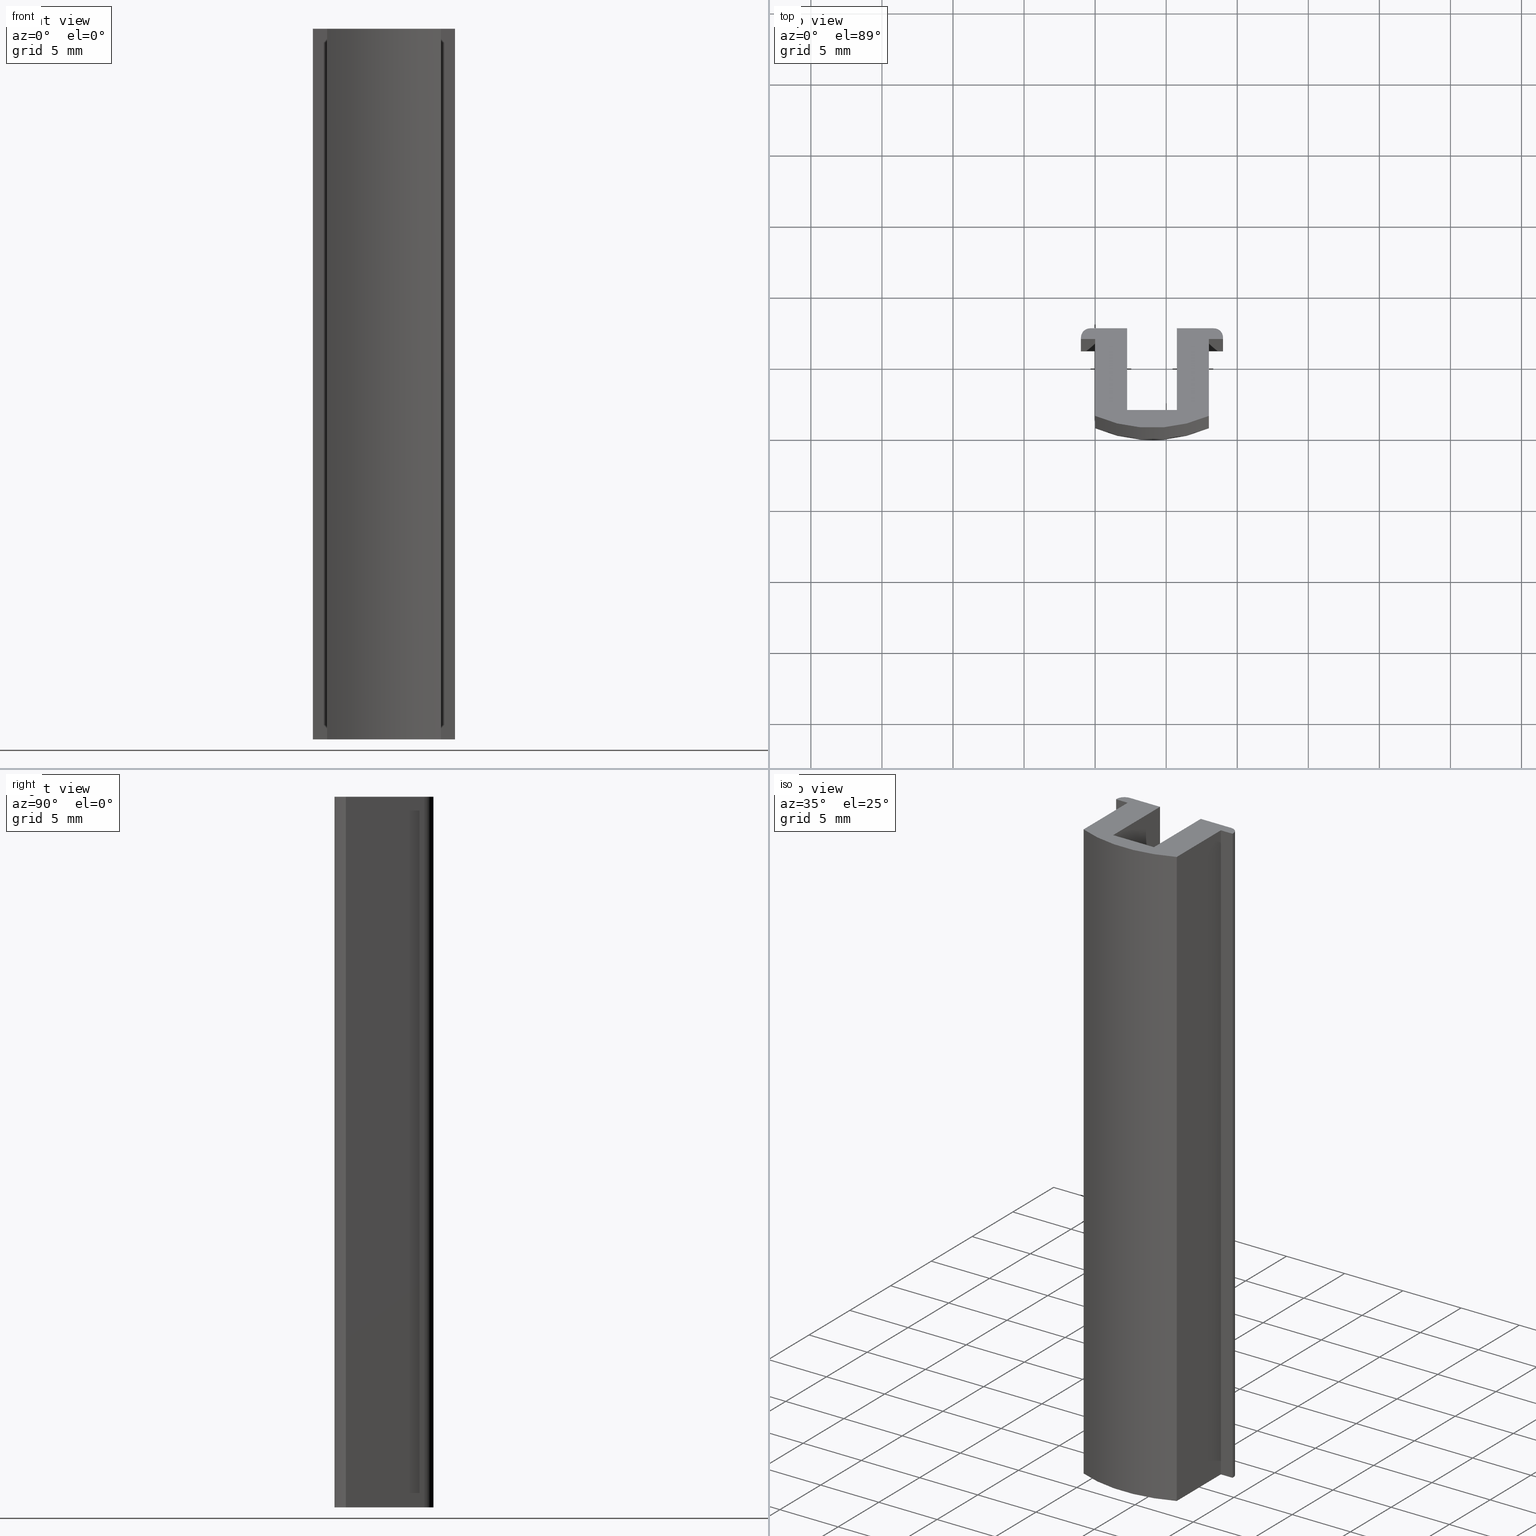
[diagram: canonical four-view strip — front | top / right | iso, engineering-drawing reading convention]
A machine part, canonical four-view strip (front | top / right | iso — engineering-drawing reading convention). The complete STEP part file that produces these views, byte-faithful:
ISO-10303-21;
HEADER;
FILE_DESCRIPTION (( 'STEP AP203' ),
    '1' );
FILE_NAME ('A39-33.STEP',
    '2018-03-28T16:40:56',
    ( 'User2' ),
    ( '' ),
    'SwSTEP 2.0',
    'SolidWorks 2007',
    '' );
FILE_SCHEMA (( 'CONFIG_CONTROL_DESIGN' ));
ENDSEC;

DATA;
#1 = PLANE ( 'NONE',  #492 ) ;
#2 = CARTESIAN_POINT ( 'NONE',  ( 5.750000000000000000, 7.000000000000000000, 50.00000000000000000 ) ) ;
#3 = DIRECTION ( 'NONE',  ( 1.000000000000000000, 0.0000000000000000000, -0.0000000000000000000 ) ) ;
#4 = DIRECTION ( 'NONE',  ( -0.0000000000000000000, 0.0000000000000000000, -1.000000000000000000 ) ) ;
#5 = PLANE ( 'NONE',  #503 ) ;
#6 = CARTESIAN_POINT ( 'NONE',  ( 9.000000000000001800, 6.250000000000000000, 50.00000000000000000 ) ) ;
#7 = DIRECTION ( 'NONE',  ( -1.000000000000000000, 9.251858538543070000E-015, 0.0000000000000000000 ) ) ;
#8 = DIRECTION ( 'NONE',  ( -9.251858538543070000E-015, -1.000000000000000000, 0.0000000000000000000 ) ) ;
#9 = PLANE ( 'NONE',  #514 ) ;
#10 = CARTESIAN_POINT ( 'NONE',  ( 0.0000000000000000000, 6.250000000000000000, 50.00000000000000000 ) ) ;
#11 = DIRECTION ( 'NONE',  ( 1.000000000000000000, 0.0000000000000000000, -0.0000000000000000000 ) ) ;
#12 = DIRECTION ( 'NONE',  ( -0.0000000000000000000, 0.0000000000000000000, -1.000000000000000000 ) ) ;
#13 =( LENGTH_UNIT ( ) NAMED_UNIT ( * ) SI_UNIT ( .MILLI., .METRE. ) );
#14 =( NAMED_UNIT ( * ) PLANE_ANGLE_UNIT ( ) SI_UNIT ( $, .RADIAN. ) );
#15 =( NAMED_UNIT ( * ) SI_UNIT ( $, .STERADIAN. ) SOLID_ANGLE_UNIT ( ) );
#16 = APPROVAL_STATUS ( 'not_yet_approved' ) ;
#17 = APPROVAL_ROLE ( '' ) ;
#18 = CARTESIAN_POINT ( 'NONE',  ( 0.0000000000000000000, 0.0000000000000000000, 0.0000000000000000000 ) ) ;
#19 = DIRECTION ( 'NONE',  ( 0.0000000000000000000, 0.0000000000000000000, 1.000000000000000000 ) ) ;
#20 = VERTEX_POINT ( 'NONE', #398 ) ;
#21 = EDGE_CURVE ( 'NONE', #392, #334, #532, .T. ) ;
#22 = EDGE_CURVE ( 'NONE', #394, #390, #531, .T. ) ;
#23 = EDGE_CURVE ( 'NONE', #546, #336, #534, .T. ) ;
#24 = EDGE_CURVE ( 'NONE', #395, #394, #282, .T. ) ;
#25 = EDGE_CURVE ( 'NONE', #336, #340, #281, .T. ) ;
#26 = EDGE_CURVE ( 'NONE', #548, #341, #284, .T. ) ;
#27 = EDGE_CURVE ( 'NONE', #547, #548, #286, .T. ) ;
#28 = EDGE_CURVE ( 'NONE', #334, #342, #288, .T. ) ;
#29 = EDGE_CURVE ( 'NONE', #20, #543, #208, .T. ) ;
#30 = EDGE_CURVE ( 'NONE', #395, #389, #210, .T. ) ;
#31 = EDGE_CURVE ( 'NONE', #548, #549, #212, .T. ) ;
#32 = EDGE_CURVE ( 'NONE', #20, #397, #214, .T. ) ;
#33 = EDGE_CURVE ( 'NONE', #388, #396, #216, .T. ) ;
#34 = EDGE_CURVE ( 'NONE', #341, #335, #218, .T. ) ;
#35 = EDGE_CURVE ( 'NONE', #543, #387, #220, .T. ) ;
#36 = EDGE_CURVE ( 'NONE', #387, #388, #222, .T. ) ;
#37 = EDGE_CURVE ( 'NONE', #547, #340, #224, .T. ) ;
#38 = EDGE_CURVE ( 'NONE', #392, #545, #226, .T. ) ;
#39 = EDGE_CURVE ( 'NONE', #335, #20, #473, .T. ) ;
#40 = EDGE_CURVE ( 'NONE', #396, #395, #472, .T. ) ;
#41 = EDGE_CURVE ( 'NONE', #388, #389, #475, .T. ) ;
#42 = EDGE_CURVE ( 'NONE', #393, #544, #477, .T. ) ;
#43 = EDGE_CURVE ( 'NONE', #339, #336, #479, .T. ) ;
#44 = EDGE_CURVE ( 'NONE', #544, #334, #463, .T. ) ;
#45 = EDGE_CURVE ( 'NONE', #545, #342, #466, .T. ) ;
#46 = EDGE_CURVE ( 'NONE', #394, #393, #465, .T. ) ;
#47 = EDGE_CURVE ( 'NONE', #387, #397, #468, .T. ) ;
#48 = EDGE_CURVE ( 'NONE', #337, #339, #470, .T. ) ;
#49 = EDGE_CURVE ( 'NONE', #546, #547, #141, .T. ) ;
#50 = EDGE_CURVE ( 'NONE', #390, #391, #143, .T. ) ;
#51 = EDGE_CURVE ( 'NONE', #337, #546, #145, .T. ) ;
#52 = PLANE ( 'NONE',  #482 ) ;
#53 = CARTESIAN_POINT ( 'NONE',  ( -0.9999999999999922300, 1.250000000000000000, 50.00000000000000000 ) ) ;
#54 = DIRECTION ( 'NONE',  ( -0.0000000000000000000, 0.0000000000000000000, -1.000000000000000000 ) ) ;
#55 = DIRECTION ( 'NONE',  ( -1.000000000000000000, 0.0000000000000000000, 0.0000000000000000000 ) ) ;
#56 = PLANE ( 'NONE',  #509 ) ;
#57 = CARTESIAN_POINT ( 'NONE',  ( 8.000000000000000000, 6.250000000000000000, 50.00000000000000000 ) ) ;
#58 = DIRECTION ( 'NONE',  ( 0.0000000000000000000, 1.000000000000000000, 0.0000000000000000000 ) ) ;
#59 = DIRECTION ( 'NONE',  ( 0.0000000000000000000, -0.0000000000000000000, 1.000000000000000000 ) ) ;
#60 = PLANE ( 'NONE',  #488 ) ;
#61 = CARTESIAN_POINT ( 'NONE',  ( -1.000000000000000900, 6.999999999999992000, 50.00000000000000000 ) ) ;
#62 = DIRECTION ( 'NONE',  ( 1.000000000000000000, 1.156482317317883800E-015, -0.0000000000000000000 ) ) ;
#63 = DIRECTION ( 'NONE',  ( -1.156482317317883800E-015, 1.000000000000000000, 0.0000000000000000000 ) ) ;
#64 = CARTESIAN_POINT ( 'NONE',  ( 8.350000000000010300, 6.350000000000002300, 0.0000000000000000000 ) ) ;
#65 = DIRECTION ( 'NONE',  ( -0.0000000000000000000, -0.0000000000000000000, 1.000000000000000000 ) ) ;
#66 = DIRECTION ( 'NONE',  ( 1.000000000000000000, 0.0000000000000000000, 0.0000000000000000000 ) ) ;
#67 = PLANE ( 'NONE',  #493 ) ;
#68 = CARTESIAN_POINT ( 'NONE',  ( -0.9999999999999922300, 1.250000000000000000, 0.0000000000000000000 ) ) ;
#69 = DIRECTION ( 'NONE',  ( -0.0000000000000000000, 0.0000000000000000000, -1.000000000000000000 ) ) ;
#70 = DIRECTION ( 'NONE',  ( -1.000000000000000000, 0.0000000000000000000, 0.0000000000000000000 ) ) ;
#71 = VECTOR ( 'NONE', #164, 1000.000000000000000 ) ;
#72 = LINE ( 'NONE', #168, #74 ) ;
#73 = CIRCLE ( 'NONE', #486, 10.00000000000000000 ) ;
#74 = VECTOR ( 'NONE', #169, 1000.000000000000000 ) ;
#75 = FACE_OUTER_BOUND ( 'NONE', #206, .T. ) ;
#76 = FACE_OUTER_BOUND ( 'NONE', #520, .T. ) ;
#77 = FACE_OUTER_BOUND ( 'NONE', #516, .T. ) ;
#78 = FACE_OUTER_BOUND ( 'NONE', #377, .T. ) ;
#79 = CYLINDRICAL_SURFACE ( 'NONE', #504, 0.6499999999999891400 ) ;
#80 = FACE_OUTER_BOUND ( 'NONE', #204, .T. ) ;
#81 = FACE_OUTER_BOUND ( 'NONE', #383, .T. ) ;
#82 = FACE_OUTER_BOUND ( 'NONE', #381, .T. ) ;
#83 = FACE_OUTER_BOUND ( 'NONE', #517, .T. ) ;
#84 = DIRECTION ( 'NONE',  ( 1.000000000000000000, 0.0000000000000000000, 0.0000000000000000000 ) ) ;
#85 = APPLICATION_CONTEXT ( 'configuration controlled 3d designs of mechanical parts and assemblies' ) ;
#86 = APPLICATION_PROTOCOL_DEFINITION ( 'international standard', 'config_control_design', 1994, #85 ) ;
#87 = MECHANICAL_CONTEXT ( 'NONE', #85, 'mechanical' ) ;
#88 = PERSON_AND_ORGANIZATION_ROLE ( 'design_owner' ) ;
#89 = APPLICATION_CONTEXT ( 'configuration controlled 3d designs of mechanical parts and assemblies' ) ;
#90 = APPLICATION_PROTOCOL_DEFINITION ( 'international standard', 'config_control_design', 1994, #89 ) ;
#91 = APPROVAL_STATUS ( 'not_yet_approved' ) ;
#92 = APPROVAL_ROLE ( '' ) ;
#93 = PERSON_AND_ORGANIZATION_ROLE ( 'creator' ) ;
#94 = DATE_TIME_ROLE ( 'creation_date' ) ;
#95 = APPROVAL_STATUS ( 'not_yet_approved' ) ;
#96 = APPROVAL_ROLE ( '' ) ;
#97 = PERSON_AND_ORGANIZATION_ROLE ( 'creator' ) ;
#98 = PERSON_AND_ORGANIZATION_ROLE ( 'design_supplier' ) ;
#99 = SECURITY_CLASSIFICATION_LEVEL ( 'unclassified' ) ;
#100 = PERSON_AND_ORGANIZATION_ROLE ( 'classification_officer' ) ;
#101 = DATE_TIME_ROLE ( 'classification_date' ) ;
#102 = FACE_OUTER_BOUND ( 'NONE', #380, .T. ) ;
#103 = FACE_OUTER_BOUND ( 'NONE', #519, .T. ) ;
#104 = FACE_OUTER_BOUND ( 'NONE', #382, .T. ) ;
#105 = FACE_OUTER_BOUND ( 'NONE', #205, .T. ) ;
#106 = FACE_OUTER_BOUND ( 'NONE', #518, .T. ) ;
#107 = ADVANCED_FACE ( 'NONE', ( #147 ), #400, .F. ) ;
#108 = ADVANCED_FACE ( 'NONE', ( #148 ), #408, .T. ) ;
#109 = ADVANCED_FACE ( 'NONE', ( #409 ), #410, .T. ) ;
#110 = ADVANCED_BREP_SHAPE_REPRESENTATION ( 'A39-33', ( #550, #495 ), #429 ) ;
#111 = DIRECTION ( 'NONE',  ( -0.0000000000000000000, -0.0000000000000000000, -1.000000000000000000 ) ) ;
#112 = CARTESIAN_POINT ( 'NONE',  ( 5.750000000000000000, 7.000000000000000000, 50.00000000000000000 ) ) ;
#113 = DIRECTION ( 'NONE',  ( -0.0000000000000000000, -0.0000000000000000000, -1.000000000000000000 ) ) ;
#114 = CARTESIAN_POINT ( 'NONE',  ( 5.750000000000000000, 1.250000000000000000, 50.00000000000000000 ) ) ;
#115 = DIRECTION ( 'NONE',  ( -1.000000000000000000, 0.0000000000000000000, 0.0000000000000000000 ) ) ;
#116 = CARTESIAN_POINT ( 'NONE',  ( 8.000000000000000000, 0.0000000000000000000, 50.00000000000000000 ) ) ;
#117 = DIRECTION ( 'NONE',  ( 0.0000000000000000000, 1.000000000000000000, 0.0000000000000000000 ) ) ;
#118 = CARTESIAN_POINT ( 'NONE',  ( 5.750000000000000000, 7.000000000000000000, 50.00000000000000000 ) ) ;
#119 = UNCERTAINTY_MEASURE_WITH_UNIT (LENGTH_MEASURE( 1.000000000000000100E-005 ), #13, 'distance_accuracy_value', 'NONE');
#120 = PLANE ( 'NONE',  #494 ) ;
#121 = CARTESIAN_POINT ( 'NONE',  ( 9.000000000000007100, 6.999999999999992000, 50.00000000000000000 ) ) ;
#122 = DIRECTION ( 'NONE',  ( -2.401924812890957600E-015, -1.000000000000000000, 0.0000000000000000000 ) ) ;
#123 = DIRECTION ( 'NONE',  ( 1.000000000000000000, -2.401924812890957600E-015, 0.0000000000000000000 ) ) ;
#124 = PLANE ( 'NONE',  #500 ) ;
#125 = CARTESIAN_POINT ( 'NONE',  ( 2.250000000000000400, 1.250000000000000000, 50.00000000000000000 ) ) ;
#126 = DIRECTION ( 'NONE',  ( -1.000000000000000000, 0.0000000000000000000, 0.0000000000000000000 ) ) ;
#127 = DIRECTION ( 'NONE',  ( 0.0000000000000000000, 0.0000000000000000000, 1.000000000000000000 ) ) ;
#128 = PLANE ( 'NONE',  #487 ) ;
#129 = CARTESIAN_POINT ( 'NONE',  ( 8.000000000000000000, 0.0000000000000000000, 50.00000000000000000 ) ) ;
#130 = DIRECTION ( 'NONE',  ( -1.000000000000000000, 0.0000000000000000000, 0.0000000000000000000 ) ) ;
#131 = DIRECTION ( 'NONE',  ( 0.0000000000000000000, 0.0000000000000000000, 1.000000000000000000 ) ) ;
#132 = PLANE ( 'NONE',  #499 ) ;
#133 = CARTESIAN_POINT ( 'NONE',  ( 5.750000000000000000, 1.250000000000000000, 50.00000000000000000 ) ) ;
#134 = DIRECTION ( 'NONE',  ( 0.0000000000000000000, -1.000000000000000000, 0.0000000000000000000 ) ) ;
#135 = DIRECTION ( 'NONE',  ( 0.0000000000000000000, -0.0000000000000000000, -1.000000000000000000 ) ) ;
#136 = PLANE ( 'NONE',  #481 ) ;
#137 = CARTESIAN_POINT ( 'NONE',  ( -1.000000000000000000, 6.250000000000000000, 50.00000000000000000 ) ) ;
#138 = DIRECTION ( 'NONE',  ( 0.0000000000000000000, 1.000000000000000000, 0.0000000000000000000 ) ) ;
#139 = DIRECTION ( 'NONE',  ( 0.0000000000000000000, -0.0000000000000000000, 1.000000000000000000 ) ) ;
#140 = VECTOR ( 'NONE', #113, 1000.000000000000000 ) ;
#141 = LINE ( 'NONE', #114, #142 ) ;
#142 = VECTOR ( 'NONE', #115, 1000.000000000000000 ) ;
#143 = LINE ( 'NONE', #116, #144 ) ;
#144 = VECTOR ( 'NONE', #117, 1000.000000000000000 ) ;
#145 = LINE ( 'NONE', #118, #146 ) ;
#146 = VECTOR ( 'NONE', #399, 1000.000000000000000 ) ;
#147 = FACE_OUTER_BOUND ( 'NONE', #379, .T. ) ;
#148 = FACE_OUTER_BOUND ( 'NONE', #251, .T. ) ;
#149 = VECTOR ( 'NONE', #366, 1000.000000000000000 ) ;
#150 = LINE ( 'NONE', #447, #151 ) ;
#151 = VECTOR ( 'NONE', #448, 1000.000000000000000 ) ;
#152 = LINE ( 'NONE', #449, #153 ) ;
#153 = VECTOR ( 'NONE', #450, 1000.000000000000000 ) ;
#154 = LINE ( 'NONE', #159, #155 ) ;
#155 = VECTOR ( 'NONE', #160, 1000.000000000000000 ) ;
#156 = LINE ( 'NONE', #161, #157 ) ;
#157 = VECTOR ( 'NONE', #162, 1000.000000000000000 ) ;
#158 = LINE ( 'NONE', #163, #71 ) ;
#159 = CARTESIAN_POINT ( 'NONE',  ( 9.000000000000001800, 6.250000000000000000, 50.00000000000000000 ) ) ;
#160 = DIRECTION ( 'NONE',  ( -0.0000000000000000000, -0.0000000000000000000, -1.000000000000000000 ) ) ;
#161 = CARTESIAN_POINT ( 'NONE',  ( 8.000000000000000000, 6.250000000000000000, 50.00000000000000000 ) ) ;
#162 = DIRECTION ( 'NONE',  ( -0.0000000000000000000, -0.0000000000000000000, -1.000000000000000000 ) ) ;
#163 = CARTESIAN_POINT ( 'NONE',  ( -1.000000000000000000, 6.250000000000000000, 0.0000000000000000000 ) ) ;
#164 = DIRECTION ( 'NONE',  ( 1.000000000000000000, 0.0000000000000000000, 0.0000000000000000000 ) ) ;
#165 = CARTESIAN_POINT ( 'NONE',  ( 4.000000000000000000, 10.00000000000000000, 50.00000000000000000 ) ) ;
#166 = DIRECTION ( 'NONE',  ( -0.0000000000000000000, 0.0000000000000000000, 1.000000000000000000 ) ) ;
#167 = DIRECTION ( 'NONE',  ( -1.000000000000000000, 0.0000000000000000000, 0.0000000000000000000 ) ) ;
#168 = CARTESIAN_POINT ( 'NONE',  ( 9.000000000000001800, 6.250000000000000000, 50.00000000000000000 ) ) ;
#169 = DIRECTION ( 'NONE',  ( 9.251858538543070000E-015, 1.000000000000000000, 0.0000000000000000000 ) ) ;
#170 = CARTESIAN_POINT ( 'NONE',  ( -1.000000000000000900, 6.350000000000000500, 50.00000000000000000 ) ) ;
#171 = CARTESIAN_POINT ( 'NONE',  ( 9.000000000000001800, 6.250000000000000000, 0.0000000000000000000 ) ) ;
#172 = CARTESIAN_POINT ( 'NONE',  ( 8.350000000000010300, 6.999999999999992000, 50.00000000000000000 ) ) ;
#173 = CARTESIAN_POINT ( 'NONE',  ( 5.750000000000000000, 1.250000000000000000, 50.00000000000000000 ) ) ;
#174 = CARTESIAN_POINT ( 'NONE',  ( 2.250000000000000400, 1.250000000000000000, 50.00000000000000000 ) ) ;
#175 = CARTESIAN_POINT ( 'NONE',  ( 2.250000000000000400, 7.000000000000000000, 50.00000000000000000 ) ) ;
#176 = CARTESIAN_POINT ( 'NONE',  ( -0.3500000000000100300, 6.999999999999993800, 50.00000000000000000 ) ) ;
#177 = ORIENTED_EDGE ( 'NONE', *, *, #498, .T. ) ;
#178 = ORIENTED_EDGE ( 'NONE', *, *, #21, .T. ) ;
#179 = ORIENTED_EDGE ( 'NONE', *, *, #44, .F. ) ;
#180 = ORIENTED_EDGE ( 'NONE', *, *, #42, .F. ) ;
#181 = ORIENTED_EDGE ( 'NONE', *, *, #46, .F. ) ;
#182 = ORIENTED_EDGE ( 'NONE', *, *, #24, .F. ) ;
#183 = ORIENTED_EDGE ( 'NONE', *, *, #28, .T. ) ;
#184 = ORIENTED_EDGE ( 'NONE', *, *, #513, .F. ) ;
#185 = ORIENTED_EDGE ( 'NONE', *, *, #505, .T. ) ;
#186 = ORIENTED_EDGE ( 'NONE', *, *, #44, .T. ) ;
#187 = ORIENTED_EDGE ( 'NONE', *, *, #21, .F. ) ;
#188 = ORIENTED_EDGE ( 'NONE', *, *, #49, .T. ) ;
#189 = ORIENTED_EDGE ( 'NONE', *, *, #27, .T. ) ;
#190 = ORIENTED_EDGE ( 'NONE', *, *, #31, .T. ) ;
#191 = ORIENTED_EDGE ( 'NONE', *, *, #485, .T. ) ;
#192 = ORIENTED_EDGE ( 'NONE', *, *, #35, .T. ) ;
#193 = ORIENTED_EDGE ( 'NONE', *, *, #36, .T. ) ;
#194 = ORIENTED_EDGE ( 'NONE', *, *, #41, .T. ) ;
#195 = ORIENTED_EDGE ( 'NONE', *, *, #511, .T. ) ;
#196 = ORIENTED_EDGE ( 'NONE', *, *, #50, .T. ) ;
#197 = ORIENTED_EDGE ( 'NONE', *, *, #501, .F. ) ;
#198 = ORIENTED_EDGE ( 'NONE', *, *, #29, .F. ) ;
#199 = ORIENTED_EDGE ( 'NONE', *, *, #32, .T. ) ;
#200 = ORIENTED_EDGE ( 'NONE', *, *, #47, .F. ) ;
#201 = ORIENTED_EDGE ( 'NONE', *, *, #35, .F. ) ;
#202 = ORIENTED_EDGE ( 'NONE', *, *, #22, .F. ) ;
#203 = ORIENTED_EDGE ( 'NONE', *, *, #46, .T. ) ;
#204 = EDGE_LOOP ( 'NONE', ( #178, #179, #180, #181, #182, #566, #567, #568, #569, #570, #571, #572, #573, #197 ) ) ;
#205 = EDGE_LOOP ( 'NONE', ( #183, #184, #185, #186 ) ) ;
#206 = EDGE_LOOP ( 'NONE', ( #526, #527, #528, #529, #188, #189, #190, #191, #192, #193, #194, #195, #196, #177 ) ) ;
#207 = VECTOR ( 'NONE', #273, 1000.000000000000000 ) ;
#208 = LINE ( 'NONE', #274, #209 ) ;
#209 = VECTOR ( 'NONE', #275, 1000.000000000000000 ) ;
#210 = LINE ( 'NONE', #276, #211 ) ;
#211 = VECTOR ( 'NONE', #277, 1000.000000000000000 ) ;
#212 = LINE ( 'NONE', #278, #213 ) ;
#213 = VECTOR ( 'NONE', #279, 1000.000000000000000 ) ;
#214 = LINE ( 'NONE', #326, #215 ) ;
#215 = VECTOR ( 'NONE', #327, 1000.000000000000000 ) ;
#216 = LINE ( 'NONE', #328, #217 ) ;
#217 = VECTOR ( 'NONE', #329, 1000.000000000000000 ) ;
#218 = LINE ( 'NONE', #330, #219 ) ;
#219 = VECTOR ( 'NONE', #331, 1000.000000000000000 ) ;
#220 = LINE ( 'NONE', #332, #221 ) ;
#221 = VECTOR ( 'NONE', #333, 1000.000000000000000 ) ;
#222 = LINE ( 'NONE', #227, #223 ) ;
#223 = VECTOR ( 'NONE', #228, 1000.000000000000000 ) ;
#224 = LINE ( 'NONE', #229, #225 ) ;
#225 = VECTOR ( 'NONE', #230, 1000.000000000000000 ) ;
#226 = LINE ( 'NONE', #231, #471 ) ;
#227 = CARTESIAN_POINT ( 'NONE',  ( -1.000000000000000000, 6.250000000000000000, 50.00000000000000000 ) ) ;
#228 = DIRECTION ( 'NONE',  ( 1.000000000000000000, 0.0000000000000000000, 0.0000000000000000000 ) ) ;
#229 = CARTESIAN_POINT ( 'NONE',  ( 2.250000000000000400, 1.250000000000000000, 50.00000000000000000 ) ) ;
#230 = DIRECTION ( 'NONE',  ( -0.0000000000000000000, -0.0000000000000000000, -1.000000000000000000 ) ) ;
#231 = CARTESIAN_POINT ( 'NONE',  ( 8.350000000000010300, 6.999999999999992000, 0.0000000000000000000 ) ) ;
#232 = DIRECTION ( 'NONE',  ( -0.0000000000000000000, -0.0000000000000000000, 1.000000000000000000 ) ) ;
#233 = CARTESIAN_POINT ( 'NONE',  ( -0.3500000000000109100, 6.350000000000000500, 0.0000000000000000000 ) ) ;
#234 = DIRECTION ( 'NONE',  ( 0.0000000000000000000, 0.0000000000000000000, 1.000000000000000000 ) ) ;
#235 = DIRECTION ( 'NONE',  ( 1.000000000000000000, 0.0000000000000000000, 0.0000000000000000000 ) ) ;
#236 = ORIENTED_EDGE ( 'NONE', *, *, #41, .F. ) ;
#237 = ORIENTED_EDGE ( 'NONE', *, *, #30, .T. ) ;
#238 = ORIENTED_EDGE ( 'NONE', *, *, #50, .F. ) ;
#239 = ORIENTED_EDGE ( 'NONE', *, *, #507, .F. ) ;
#240 = ORIENTED_EDGE ( 'NONE', *, *, #40, .T. ) ;
#241 = ORIENTED_EDGE ( 'NONE', *, *, #33, .T. ) ;
#242 = ORIENTED_EDGE ( 'NONE', *, *, #508, .T. ) ;
#243 = ORIENTED_EDGE ( 'NONE', *, *, #33, .F. ) ;
#244 = ORIENTED_EDGE ( 'NONE', *, *, #36, .F. ) ;
#245 = ORIENTED_EDGE ( 'NONE', *, *, #47, .T. ) ;
#246 = ORIENTED_EDGE ( 'NONE', *, *, #42, .T. ) ;
#247 = ORIENTED_EDGE ( 'NONE', *, *, #505, .F. ) ;
#248 = ORIENTED_EDGE ( 'NONE', *, *, #498, .F. ) ;
#249 = ORIENTED_EDGE ( 'NONE', *, *, #507, .T. ) ;
#250 = ORIENTED_EDGE ( 'NONE', *, *, #502, .F. ) ;
#251 = EDGE_LOOP ( 'NONE', ( #371, #372, #373, #374 ) ) ;
#252 = COORDINATED_UNIVERSAL_TIME_OFFSET ( 3, 0, .BEHIND. ) ;
#253 = LOCAL_TIME ( 13, 40, 56.00000000000000000, #252 ) ;
#254 = CALENDAR_DATE ( 2018, 28, 3 ) ;
#255 = DATE_AND_TIME ( #254, #253 ) ;
#256 = APPROVAL_DATE_TIME ( #255, #309 ) ;
#257 = PERSON_AND_ORGANIZATION ( #292, #431 ) ;
#258 = PERSON_AND_ORGANIZATION ( #292, #431 ) ;
#259 = SECURITY_CLASSIFICATION ( '', '', #99 ) ;
#260 = PERSON_AND_ORGANIZATION ( #292, #431 ) ;
#261 = COORDINATED_UNIVERSAL_TIME_OFFSET ( 3, 0, .BEHIND. ) ;
#262 = LOCAL_TIME ( 13, 40, 56.00000000000000000, #261 ) ;
#263 = CALENDAR_DATE ( 2018, 28, 3 ) ;
#264 = DATE_AND_TIME ( #263, #262 ) ;
#265 = PERSON_AND_ORGANIZATION ( #292, #431 ) ;
#266 = APPROVAL_PERSON_ORGANIZATION ( #265, #304, #17 ) ;
#267 = COORDINATED_UNIVERSAL_TIME_OFFSET ( 3, 0, .BEHIND. ) ;
#268 = LOCAL_TIME ( 13, 40, 56.00000000000000000, #267 ) ;
#269 = CALENDAR_DATE ( 2018, 28, 3 ) ;
#270 = DATE_AND_TIME ( #269, #268 ) ;
#271 = APPROVAL_DATE_TIME ( #270, #304 ) ;
#272 = CARTESIAN_POINT ( 'NONE',  ( 9.000000000000000000, 6.350000000000002300, 0.0000000000000000000 ) ) ;
#273 = DIRECTION ( 'NONE',  ( -0.0000000000000000000, -0.0000000000000000000, 1.000000000000000000 ) ) ;
#274 = CARTESIAN_POINT ( 'NONE',  ( -1.000000000000000900, 6.350000000000000500, 0.0000000000000000000 ) ) ;
#275 = DIRECTION ( 'NONE',  ( -0.0000000000000000000, -0.0000000000000000000, 1.000000000000000000 ) ) ;
#276 = CARTESIAN_POINT ( 'NONE',  ( 0.0000000000000000000, 0.8348486100883192300, 0.0000000000000000000 ) ) ;
#277 = DIRECTION ( 'NONE',  ( -0.0000000000000000000, -0.0000000000000000000, 1.000000000000000000 ) ) ;
#278 = CARTESIAN_POINT ( 'NONE',  ( 2.250000000000000400, 7.000000000000000000, 50.00000000000000000 ) ) ;
#279 = DIRECTION ( 'NONE',  ( -1.000000000000000000, -2.401924812890963100E-015, 0.0000000000000000000 ) ) ;
#280 = VECTOR ( 'NONE', #541, 1000.000000000000000 ) ;
#281 = LINE ( 'NONE', #295, #283 ) ;
#282 = CIRCLE ( 'NONE', #480, 10.00000000000000000 ) ;
#283 = VECTOR ( 'NONE', #296, 1000.000000000000000 ) ;
#284 = LINE ( 'NONE', #297, #285 ) ;
#285 = VECTOR ( 'NONE', #298, 1000.000000000000000 ) ;
#286 = LINE ( 'NONE', #299, #287 ) ;
#287 = VECTOR ( 'NONE', #300, 1000.000000000000000 ) ;
#288 = LINE ( 'NONE', #272, #207 ) ;
#289 = PRODUCT_DEFINITION_SHAPE ( 'NONE', 'NONE',  #489 ) ;
#290 = DESIGN_CONTEXT ( 'detailed design', #89, 'design' ) ;
#291 = PRODUCT ( 'A39-33', 'A39-33', '', ( #87 ) ) ;
#292 = PERSON ( 'UNSPECIFIED', 'UNSPECIFIED', 'UNSPECIFIED', ('UNSPECIFIED'), ('UNSPECIFIED'), ('UNSPECIFIED') ) ;
#293 = DIRECTION ( 'NONE',  ( -0.0000000000000000000, 0.0000000000000000000, 1.000000000000000000 ) ) ;
#294 = DIRECTION ( 'NONE',  ( -1.000000000000000000, 0.0000000000000000000, 0.0000000000000000000 ) ) ;
#295 = CARTESIAN_POINT ( 'NONE',  ( 5.750000000000000000, 1.250000000000000000, 0.0000000000000000000 ) ) ;
#296 = DIRECTION ( 'NONE',  ( -1.000000000000000000, 0.0000000000000000000, 0.0000000000000000000 ) ) ;
#297 = CARTESIAN_POINT ( 'NONE',  ( 2.250000000000000400, 7.000000000000000000, 50.00000000000000000 ) ) ;
#298 = DIRECTION ( 'NONE',  ( -0.0000000000000000000, -0.0000000000000000000, -1.000000000000000000 ) ) ;
#299 = CARTESIAN_POINT ( 'NONE',  ( 2.250000000000000400, 1.250000000000000000, 50.00000000000000000 ) ) ;
#300 = DIRECTION ( 'NONE',  ( 0.0000000000000000000, 1.000000000000000000, 0.0000000000000000000 ) ) ;
#301 = CC_DESIGN_PERSON_AND_ORGANIZATION_ASSIGNMENT ( #258, #98, ( #308 ) ) ;
#302 = CC_DESIGN_PERSON_AND_ORGANIZATION_ASSIGNMENT ( #260, #100, ( #259 ) ) ;
#303 = CC_DESIGN_DATE_AND_TIME_ASSIGNMENT ( #264, #101, ( #259 ) ) ;
#304 = APPROVAL ( #16, 'UNSPECIFIED' ) ;
#305 = CC_DESIGN_PERSON_AND_ORGANIZATION_ASSIGNMENT ( #440, #93, ( #489 ) ) ;
#306 = CC_DESIGN_APPROVAL ( #315, ( #489 ) ) ;
#307 = CC_DESIGN_DATE_AND_TIME_ASSIGNMENT ( #444, #94, ( #489 ) ) ;
#308 = PRODUCT_DEFINITION_FORMATION_WITH_SPECIFIED_SOURCE ( 'ANY', '', #291, .NOT_KNOWN. ) ;
#309 = APPROVAL ( #95, 'UNSPECIFIED' ) ;
#310 = CC_DESIGN_APPROVAL ( #309, ( #308 ) ) ;
#311 = CC_DESIGN_PERSON_AND_ORGANIZATION_ASSIGNMENT ( #257, #97, ( #308 ) ) ;
#312 = CC_DESIGN_APPROVAL ( #304, ( #259 ) ) ;
#313 = CC_DESIGN_SECURITY_CLASSIFICATION ( #259, ( #308 ) ) ;
#314 = PRODUCT_RELATED_PRODUCT_CATEGORY ( 'detail', '', ( #291 ) ) ;
#315 = APPROVAL ( #91, 'UNSPECIFIED' ) ;
#316 = ORIENTED_EDGE ( 'NONE', *, *, #43, .T. ) ;
#317 = ORIENTED_EDGE ( 'NONE', *, *, #23, .F. ) ;
#318 = ORIENTED_EDGE ( 'NONE', *, *, #51, .F. ) ;
#319 = ORIENTED_EDGE ( 'NONE', *, *, #48, .T. ) ;
#320 = ORIENTED_EDGE ( 'NONE', *, *, #25, .T. ) ;
#321 = ORIENTED_EDGE ( 'NONE', *, *, #37, .F. ) ;
#322 = ORIENTED_EDGE ( 'NONE', *, *, #49, .F. ) ;
#323 = ORIENTED_EDGE ( 'NONE', *, *, #23, .T. ) ;
#324 = ORIENTED_EDGE ( 'NONE', *, *, #496, .T. ) ;
#325 = ORIENTED_EDGE ( 'NONE', *, *, #26, .F. ) ;
#326 = CARTESIAN_POINT ( 'NONE',  ( -1.000000000000000900, 6.999999999999992000, 0.0000000000000000000 ) ) ;
#327 = DIRECTION ( 'NONE',  ( 1.156482317317883800E-015, -1.000000000000000000, 0.0000000000000000000 ) ) ;
#328 = CARTESIAN_POINT ( 'NONE',  ( 0.0000000000000000000, 6.250000000000000000, 50.00000000000000000 ) ) ;
#329 = DIRECTION ( 'NONE',  ( -0.0000000000000000000, -0.0000000000000000000, -1.000000000000000000 ) ) ;
#330 = CARTESIAN_POINT ( 'NONE',  ( 2.250000000000000400, 7.000000000000000000, 0.0000000000000000000 ) ) ;
#331 = DIRECTION ( 'NONE',  ( -1.000000000000000000, -2.401924812890963100E-015, 0.0000000000000000000 ) ) ;
#332 = CARTESIAN_POINT ( 'NONE',  ( -1.000000000000000900, 6.999999999999992000, 50.00000000000000000 ) ) ;
#333 = DIRECTION ( 'NONE',  ( 1.156482317317883800E-015, -1.000000000000000000, 0.0000000000000000000 ) ) ;
#334 = VERTEX_POINT ( 'NONE', #419 ) ;
#335 = VERTEX_POINT ( 'NONE', #420 ) ;
#336 = VERTEX_POINT ( 'NONE', #421 ) ;
#337 = VERTEX_POINT ( 'NONE', #422 ) ;
#338 = VERTEX_POINT ( 'NONE', #423 ) ;
#339 = VERTEX_POINT ( 'NONE', #424 ) ;
#340 = VERTEX_POINT ( 'NONE', #425 ) ;
#341 = VERTEX_POINT ( 'NONE', #426 ) ;
#342 = VERTEX_POINT ( 'NONE', #427 ) ;
#343 = CARTESIAN_POINT ( 'NONE',  ( 0.0000000000000000000, 6.250000000000000000, 0.0000000000000000000 ) ) ;
#344 = DIRECTION ( 'NONE',  ( 0.0000000000000000000, -1.000000000000000000, 0.0000000000000000000 ) ) ;
#345 = CARTESIAN_POINT ( 'NONE',  ( 0.0000000000000000000, 6.250000000000000000, 50.00000000000000000 ) ) ;
#346 = DIRECTION ( 'NONE',  ( 0.0000000000000000000, -1.000000000000000000, 0.0000000000000000000 ) ) ;
#347 = CARTESIAN_POINT ( 'NONE',  ( 8.000000000000000000, 6.250000000000000000, 0.0000000000000000000 ) ) ;
#348 = DIRECTION ( 'NONE',  ( 1.000000000000000000, 0.0000000000000000000, 0.0000000000000000000 ) ) ;
#349 = CARTESIAN_POINT ( 'NONE',  ( 5.750000000000000000, 7.000000000000000000, 0.0000000000000000000 ) ) ;
#350 = DIRECTION ( 'NONE',  ( 0.0000000000000000000, -1.000000000000000000, 0.0000000000000000000 ) ) ;
#351 = CARTESIAN_POINT ( 'NONE',  ( 9.000000000000001800, 6.250000000000000000, 0.0000000000000000000 ) ) ;
#352 = DIRECTION ( 'NONE',  ( 9.251858538543070000E-015, 1.000000000000000000, 0.0000000000000000000 ) ) ;
#353 = CARTESIAN_POINT ( 'NONE',  ( 8.350000000000010300, 6.350000000000002300, 50.00000000000000000 ) ) ;
#354 = DIRECTION ( 'NONE',  ( -0.0000000000000000000, -0.0000000000000000000, -1.000000000000000000 ) ) ;
#355 = DIRECTION ( 'NONE',  ( -1.000000000000000000, 0.0000000000000000000, 0.0000000000000000000 ) ) ;
#356 = CARTESIAN_POINT ( 'NONE',  ( 8.000000000000000000, 0.0000000000000000000, 0.0000000000000000000 ) ) ;
#357 = DIRECTION ( 'NONE',  ( 0.0000000000000000000, 1.000000000000000000, 0.0000000000000000000 ) ) ;
#358 = CARTESIAN_POINT ( 'NONE',  ( -1.000000000000000000, 6.250000000000000000, 50.00000000000000000 ) ) ;
#359 = DIRECTION ( 'NONE',  ( -0.0000000000000000000, -0.0000000000000000000, 1.000000000000000000 ) ) ;
#360 = CARTESIAN_POINT ( 'NONE',  ( -0.3500000000000109100, 6.350000000000000500, 50.00000000000000000 ) ) ;
#361 = DIRECTION ( 'NONE',  ( 0.0000000000000000000, 0.0000000000000000000, 1.000000000000000000 ) ) ;
#362 = DIRECTION ( 'NONE',  ( 1.000000000000000000, 0.0000000000000000000, 0.0000000000000000000 ) ) ;
#363 = CARTESIAN_POINT ( 'NONE',  ( 2.250000000000000400, 1.250000000000000000, 0.0000000000000000000 ) ) ;
#364 = DIRECTION ( 'NONE',  ( 0.0000000000000000000, 1.000000000000000000, 0.0000000000000000000 ) ) ;
#365 = CARTESIAN_POINT ( 'NONE',  ( 8.000000000000000000, 6.250000000000000000, 50.00000000000000000 ) ) ;
#366 = DIRECTION ( 'NONE',  ( 1.000000000000000000, 0.0000000000000000000, 0.0000000000000000000 ) ) ;
#367 = ORIENTED_EDGE ( 'NONE', *, *, #511, .F. ) ;
#368 = ORIENTED_EDGE ( 'NONE', *, *, #30, .F. ) ;
#369 = ORIENTED_EDGE ( 'NONE', *, *, #24, .T. ) ;
#370 = ORIENTED_EDGE ( 'NONE', *, *, #22, .T. ) ;
#371 = ORIENTED_EDGE ( 'NONE', *, *, #485, .F. ) ;
#372 = ORIENTED_EDGE ( 'NONE', *, *, #483, .F. ) ;
#373 = ORIENTED_EDGE ( 'NONE', *, *, #39, .T. ) ;
#374 = ORIENTED_EDGE ( 'NONE', *, *, #29, .T. ) ;
#375 = ORIENTED_EDGE ( 'NONE', *, *, #45, .T. ) ;
#376 = ORIENTED_EDGE ( 'NONE', *, *, #28, .F. ) ;
#377 = EDGE_LOOP ( 'NONE', ( #375, #376, #187, #530 ) ) ;
#378 = EDGE_LOOP ( 'NONE', ( #367, #368, #369, #370 ) ) ;
#379 = EDGE_LOOP ( 'NONE', ( #522, #523, #524, #525 ) ) ;
#380 = EDGE_LOOP ( 'NONE', ( #320, #321, #322, #323 ) ) ;
#381 = EDGE_LOOP ( 'NONE', ( #324, #325, #564, #565 ) ) ;
#382 = EDGE_LOOP ( 'NONE', ( #316, #317, #318, #319 ) ) ;
#383 = EDGE_LOOP ( 'NONE', ( #250, #384, #385, #386 ) ) ;
#384 = ORIENTED_EDGE ( 'NONE', *, *, #38, .F. ) ;
#385 = ORIENTED_EDGE ( 'NONE', *, *, #501, .T. ) ;
#386 = ORIENTED_EDGE ( 'NONE', *, *, #48, .F. ) ;
#387 = VERTEX_POINT ( 'NONE', #428 ) ;
#388 = VERTEX_POINT ( 'NONE', #451 ) ;
#389 = VERTEX_POINT ( 'NONE', #452 ) ;
#390 = VERTEX_POINT ( 'NONE', #453 ) ;
#391 = VERTEX_POINT ( 'NONE', #454 ) ;
#392 = VERTEX_POINT ( 'NONE', #455 ) ;
#393 = VERTEX_POINT ( 'NONE', #456 ) ;
#394 = VERTEX_POINT ( 'NONE', #457 ) ;
#395 = VERTEX_POINT ( 'NONE', #458 ) ;
#396 = VERTEX_POINT ( 'NONE', #459 ) ;
#397 = VERTEX_POINT ( 'NONE', #460 ) ;
#398 = CARTESIAN_POINT ( 'NONE',  ( -1.000000000000000900, 6.350000000000000500, 0.0000000000000000000 ) ) ;
#399 = DIRECTION ( 'NONE',  ( 0.0000000000000000000, -1.000000000000000000, 0.0000000000000000000 ) ) ;
#400 = PLANE ( 'NONE',  #497 ) ;
#401 = CARTESIAN_POINT ( 'NONE',  ( 2.250000000000000400, 7.000000000000000000, 50.00000000000000000 ) ) ;
#402 = DIRECTION ( 'NONE',  ( 2.401924812890963500E-015, -1.000000000000000000, 0.0000000000000000000 ) ) ;
#403 = DIRECTION ( 'NONE',  ( 1.000000000000000000, 2.401924812890963500E-015, 0.0000000000000000000 ) ) ;
#404 = CARTESIAN_POINT ( 'NONE',  ( -0.3500000000000109100, 6.350000000000000500, 0.0000000000000000000 ) ) ;
#405 = DIRECTION ( 'NONE',  ( -0.0000000000000000000, -0.0000000000000000000, 1.000000000000000000 ) ) ;
#406 = DIRECTION ( 'NONE',  ( 1.000000000000000000, 0.0000000000000000000, 0.0000000000000000000 ) ) ;
#407 = CARTESIAN_POINT ( 'NONE',  ( 4.000000000000000000, 10.00000000000000000, 0.0000000000000000000 ) ) ;
#408 = CYLINDRICAL_SURFACE ( 'NONE', #506, 0.6499999999999948000 ) ;
#409 = FACE_OUTER_BOUND ( 'NONE', #378, .T. ) ;
#410 = CYLINDRICAL_SURFACE ( 'NONE', #491, 10.00000000000000000 ) ;
#411 = LINE ( 'NONE', #461, #412 ) ;
#412 = VECTOR ( 'NONE', #359, 1000.000000000000000 ) ;
#413 = LINE ( 'NONE', #363, #415 ) ;
#414 = CIRCLE ( 'NONE', #512, 0.6499999999999948000 ) ;
#415 = VECTOR ( 'NONE', #364, 1000.000000000000000 ) ;
#416 = LINE ( 'NONE', #365, #149 ) ;
#417 = DIRECTION ( 'NONE',  ( -0.0000000000000000000, -0.0000000000000000000, 1.000000000000000000 ) ) ;
#418 = DIRECTION ( 'NONE',  ( 1.000000000000000000, 0.0000000000000000000, 0.0000000000000000000 ) ) ;
#419 = CARTESIAN_POINT ( 'NONE',  ( 9.000000000000000000, 6.350000000000002300, 0.0000000000000000000 ) ) ;
#420 = CARTESIAN_POINT ( 'NONE',  ( -0.3500000000000109100, 7.000000000000000000, 0.0000000000000000000 ) ) ;
#421 = CARTESIAN_POINT ( 'NONE',  ( 5.750000000000000000, 1.250000000000000000, 0.0000000000000000000 ) ) ;
#422 = CARTESIAN_POINT ( 'NONE',  ( 5.750000000000000000, 7.000000000000000000, 50.00000000000000000 ) ) ;
#423 = CARTESIAN_POINT ( 'NONE',  ( 9.000000000000001800, 6.250000000000000000, 50.00000000000000000 ) ) ;
#424 = CARTESIAN_POINT ( 'NONE',  ( 5.750000000000000000, 7.000000000000000000, 0.0000000000000000000 ) ) ;
#425 = CARTESIAN_POINT ( 'NONE',  ( 2.250000000000000400, 1.250000000000000000, 0.0000000000000000000 ) ) ;
#426 = CARTESIAN_POINT ( 'NONE',  ( 2.250000000000000400, 7.000000000000000000, 0.0000000000000000000 ) ) ;
#427 = CARTESIAN_POINT ( 'NONE',  ( 9.000000000000000000, 6.350000000000002300, 50.00000000000000000 ) ) ;
#428 = CARTESIAN_POINT ( 'NONE',  ( -1.000000000000000000, 6.250000000000000000, 50.00000000000000000 ) ) ;
#429 =( GEOMETRIC_REPRESENTATION_CONTEXT ( 3 ) GLOBAL_UNCERTAINTY_ASSIGNED_CONTEXT ( ( #119 ) ) GLOBAL_UNIT_ASSIGNED_CONTEXT ( ( #13, #14, #15 ) ) REPRESENTATION_CONTEXT ( 'NONE', 'WORKASPACE' ) );
#430 = SHAPE_DEFINITION_REPRESENTATION ( #289, #110 ) ;
#431 = ORGANIZATION ( 'UNSPECIFIED', 'UNSPECIFIED', '' ) ;
#432 = PERSON_AND_ORGANIZATION ( #292, #431 ) ;
#433 = PERSON_AND_ORGANIZATION ( #292, #431 ) ;
#434 = APPROVAL_PERSON_ORGANIZATION ( #433, #315, #92 ) ;
#435 = COORDINATED_UNIVERSAL_TIME_OFFSET ( 3, 0, .BEHIND. ) ;
#436 = LOCAL_TIME ( 13, 40, 56.00000000000000000, #435 ) ;
#437 = CALENDAR_DATE ( 2018, 28, 3 ) ;
#438 = DATE_AND_TIME ( #437, #436 ) ;
#439 = APPROVAL_DATE_TIME ( #438, #315 ) ;
#440 = PERSON_AND_ORGANIZATION ( #292, #431 ) ;
#441 = COORDINATED_UNIVERSAL_TIME_OFFSET ( 3, 0, .BEHIND. ) ;
#442 = LOCAL_TIME ( 13, 40, 56.00000000000000000, #441 ) ;
#443 = CALENDAR_DATE ( 2018, 28, 3 ) ;
#444 = DATE_AND_TIME ( #443, #442 ) ;
#445 = PERSON_AND_ORGANIZATION ( #292, #431 ) ;
#446 = APPROVAL_PERSON_ORGANIZATION ( #445, #309, #96 ) ;
#447 = CARTESIAN_POINT ( 'NONE',  ( 9.000000000000007100, 6.999999999999992000, 0.0000000000000000000 ) ) ;
#448 = DIRECTION ( 'NONE',  ( -1.000000000000000000, 2.401924812890957600E-015, 0.0000000000000000000 ) ) ;
#449 = CARTESIAN_POINT ( 'NONE',  ( 9.000000000000007100, 6.999999999999992000, 50.00000000000000000 ) ) ;
#450 = DIRECTION ( 'NONE',  ( -1.000000000000000000, 2.401924812890957600E-015, 0.0000000000000000000 ) ) ;
#451 = CARTESIAN_POINT ( 'NONE',  ( 0.0000000000000000000, 6.250000000000000000, 50.00000000000000000 ) ) ;
#452 = CARTESIAN_POINT ( 'NONE',  ( 0.0000000000000000000, 0.8348486100883192300, 50.00000000000000000 ) ) ;
#453 = CARTESIAN_POINT ( 'NONE',  ( 8.000000000000000000, 0.8348486100883192300, 50.00000000000000000 ) ) ;
#454 = CARTESIAN_POINT ( 'NONE',  ( 8.000000000000000000, 6.250000000000000000, 50.00000000000000000 ) ) ;
#455 = CARTESIAN_POINT ( 'NONE',  ( 8.350000000000010300, 6.999999999999993800, 0.0000000000000000000 ) ) ;
#456 = CARTESIAN_POINT ( 'NONE',  ( 8.000000000000000000, 6.250000000000000000, 0.0000000000000000000 ) ) ;
#457 = CARTESIAN_POINT ( 'NONE',  ( 8.000000000000000000, 0.8348486100883192300, 0.0000000000000000000 ) ) ;
#458 = CARTESIAN_POINT ( 'NONE',  ( 0.0000000000000000000, 0.8348486100883192300, 0.0000000000000000000 ) ) ;
#459 = CARTESIAN_POINT ( 'NONE',  ( 0.0000000000000000000, 6.250000000000000000, 0.0000000000000000000 ) ) ;
#460 = CARTESIAN_POINT ( 'NONE',  ( -1.000000000000000000, 6.250000000000000000, 0.0000000000000000000 ) ) ;
#461 = CARTESIAN_POINT ( 'NONE',  ( -0.3500000000000109100, 7.000000000000000000, 0.0000000000000000000 ) ) ;
#462 = VECTOR ( 'NONE', #350, 1000.000000000000000 ) ;
#463 = LINE ( 'NONE', #351, #464 ) ;
#464 = VECTOR ( 'NONE', #352, 1000.000000000000000 ) ;
#465 = LINE ( 'NONE', #356, #467 ) ;
#466 = CIRCLE ( 'NONE', #510, 0.6499999999999891400 ) ;
#467 = VECTOR ( 'NONE', #357, 1000.000000000000000 ) ;
#468 = LINE ( 'NONE', #358, #469 ) ;
#469 = VECTOR ( 'NONE', #111, 1000.000000000000000 ) ;
#470 = LINE ( 'NONE', #112, #140 ) ;
#471 = VECTOR ( 'NONE', #232, 1000.000000000000000 ) ;
#472 = LINE ( 'NONE', #343, #474 ) ;
#473 = CIRCLE ( 'NONE', #490, 0.6499999999999948000 ) ;
#474 = VECTOR ( 'NONE', #344, 1000.000000000000000 ) ;
#475 = LINE ( 'NONE', #345, #476 ) ;
#476 = VECTOR ( 'NONE', #346, 1000.000000000000000 ) ;
#477 = LINE ( 'NONE', #347, #478 ) ;
#478 = VECTOR ( 'NONE', #348, 1000.000000000000000 ) ;
#479 = LINE ( 'NONE', #349, #462 ) ;
#480 = AXIS2_PLACEMENT_3D ( 'NONE', #542, #293, #294 ) ;
#481 = AXIS2_PLACEMENT_3D ( 'NONE', #137, #138, #139 ) ;
#482 = AXIS2_PLACEMENT_3D ( 'NONE', #53, #54, #55 ) ;
#483 = EDGE_CURVE ( 'NONE', #335, #549, #411, .T. ) ;
#484 = AXIS2_PLACEMENT_3D ( 'NONE', #535, #536, #537 ) ;
#485 = EDGE_CURVE ( 'NONE', #549, #543, #414, .T. ) ;
#486 = AXIS2_PLACEMENT_3D ( 'NONE', #165, #166, #167 ) ;
#487 = AXIS2_PLACEMENT_3D ( 'NONE', #129, #130, #131 ) ;
#488 = AXIS2_PLACEMENT_3D ( 'NONE', #61, #62, #63 ) ;
#489 = PRODUCT_DEFINITION ( 'UNKNOWN', '', #308, #290 ) ;
#490 = AXIS2_PLACEMENT_3D ( 'NONE', #233, #234, #235 ) ;
#491 = AXIS2_PLACEMENT_3D ( 'NONE', #407, #417, #418 ) ;
#492 = AXIS2_PLACEMENT_3D ( 'NONE', #2, #3, #4 ) ;
#493 = AXIS2_PLACEMENT_3D ( 'NONE', #68, #69, #70 ) ;
#494 = AXIS2_PLACEMENT_3D ( 'NONE', #121, #122, #123 ) ;
#495 = AXIS2_PLACEMENT_3D ( 'NONE', #18, #19, #84 ) ;
#496 = EDGE_CURVE ( 'NONE', #340, #341, #413, .T. ) ;
#497 = AXIS2_PLACEMENT_3D ( 'NONE', #401, #402, #403 ) ;
#498 = EDGE_CURVE ( 'NONE', #391, #338, #416, .T. ) ;
#499 = AXIS2_PLACEMENT_3D ( 'NONE', #133, #134, #135 ) ;
#500 = AXIS2_PLACEMENT_3D ( 'NONE', #125, #126, #127 ) ;
#501 = EDGE_CURVE ( 'NONE', #392, #339, #150, .T. ) ;
#502 = EDGE_CURVE ( 'NONE', #545, #337, #152, .T. ) ;
#503 = AXIS2_PLACEMENT_3D ( 'NONE', #6, #7, #8 ) ;
#504 = AXIS2_PLACEMENT_3D ( 'NONE', #64, #65, #66 ) ;
#505 = EDGE_CURVE ( 'NONE', #338, #544, #154, .T. ) ;
#506 = AXIS2_PLACEMENT_3D ( 'NONE', #404, #405, #406 ) ;
#507 = EDGE_CURVE ( 'NONE', #391, #393, #156, .T. ) ;
#508 = EDGE_CURVE ( 'NONE', #397, #396, #158, .T. ) ;
#509 = AXIS2_PLACEMENT_3D ( 'NONE', #57, #58, #59 ) ;
#510 = AXIS2_PLACEMENT_3D ( 'NONE', #353, #354, #355 ) ;
#511 = EDGE_CURVE ( 'NONE', #389, #390, #73, .T. ) ;
#512 = AXIS2_PLACEMENT_3D ( 'NONE', #360, #361, #362 ) ;
#513 = EDGE_CURVE ( 'NONE', #338, #342, #72, .T. ) ;
#514 = AXIS2_PLACEMENT_3D ( 'NONE', #10, #11, #12 ) ;
#515 = CC_DESIGN_PERSON_AND_ORGANIZATION_ASSIGNMENT ( #432, #88, ( #291 ) ) ;
#516 = EDGE_LOOP ( 'NONE', ( #198, #199, #200, #201 ) ) ;
#517 = EDGE_LOOP ( 'NONE', ( #202, #203, #239, #238 ) ) ;
#518 = EDGE_LOOP ( 'NONE', ( #237, #236, #241, #240 ) ) ;
#519 = EDGE_LOOP ( 'NONE', ( #242, #243, #244, #245 ) ) ;
#520 = EDGE_LOOP ( 'NONE', ( #246, #247, #248, #249 ) ) ;
#521 = CLOSED_SHELL ( 'NONE', ( #562, #551, #555, #553, #558, #563, #560, #552, #556, #561, #559, #557, #107, #109, #108, #554 ) ) ;
#522 = ORIENTED_EDGE ( 'NONE', *, *, #34, .T. ) ;
#523 = ORIENTED_EDGE ( 'NONE', *, *, #483, .T. ) ;
#524 = ORIENTED_EDGE ( 'NONE', *, *, #31, .F. ) ;
#525 = ORIENTED_EDGE ( 'NONE', *, *, #26, .T. ) ;
#526 = ORIENTED_EDGE ( 'NONE', *, *, #513, .T. ) ;
#527 = ORIENTED_EDGE ( 'NONE', *, *, #45, .F. ) ;
#528 = ORIENTED_EDGE ( 'NONE', *, *, #502, .T. ) ;
#529 = ORIENTED_EDGE ( 'NONE', *, *, #51, .T. ) ;
#530 = ORIENTED_EDGE ( 'NONE', *, *, #38, .T. ) ;
#531 = LINE ( 'NONE', #538, #533 ) ;
#532 = CIRCLE ( 'NONE', #484, 0.6499999999999891400 ) ;
#533 = VECTOR ( 'NONE', #539, 1000.000000000000000 ) ;
#534 = LINE ( 'NONE', #540, #280 ) ;
#535 = CARTESIAN_POINT ( 'NONE',  ( 8.350000000000010300, 6.350000000000002300, 0.0000000000000000000 ) ) ;
#536 = DIRECTION ( 'NONE',  ( -0.0000000000000000000, -0.0000000000000000000, -1.000000000000000000 ) ) ;
#537 = DIRECTION ( 'NONE',  ( -1.000000000000000000, 0.0000000000000000000, 0.0000000000000000000 ) ) ;
#538 = CARTESIAN_POINT ( 'NONE',  ( 8.000000000000000000, 0.8348486100883192300, 0.0000000000000000000 ) ) ;
#539 = DIRECTION ( 'NONE',  ( -0.0000000000000000000, -0.0000000000000000000, 1.000000000000000000 ) ) ;
#540 = CARTESIAN_POINT ( 'NONE',  ( 5.750000000000000000, 1.250000000000000000, 50.00000000000000000 ) ) ;
#541 = DIRECTION ( 'NONE',  ( -0.0000000000000000000, -0.0000000000000000000, -1.000000000000000000 ) ) ;
#542 = CARTESIAN_POINT ( 'NONE',  ( 4.000000000000000000, 10.00000000000000000, 0.0000000000000000000 ) ) ;
#543 = VERTEX_POINT ( 'NONE', #170 ) ;
#544 = VERTEX_POINT ( 'NONE', #171 ) ;
#545 = VERTEX_POINT ( 'NONE', #172 ) ;
#546 = VERTEX_POINT ( 'NONE', #173 ) ;
#547 = VERTEX_POINT ( 'NONE', #174 ) ;
#548 = VERTEX_POINT ( 'NONE', #175 ) ;
#549 = VERTEX_POINT ( 'NONE', #176 ) ;
#550 = MANIFOLD_SOLID_BREP ( 'NONE', #521 ) ;
#551 = ADVANCED_FACE ( 'NONE', ( #75 ), #52, .F. ) ;
#552 = ADVANCED_FACE ( 'NONE', ( #76 ), #56, .F. ) ;
#553 = ADVANCED_FACE ( 'NONE', ( #77 ), #60, .F. ) ;
#554 = ADVANCED_FACE ( 'NONE', ( #78 ), #79, .T. ) ;
#555 = ADVANCED_FACE ( 'NONE', ( #80 ), #67, .T. ) ;
#556 = ADVANCED_FACE ( 'NONE', ( #81 ), #120, .F. ) ;
#557 = ADVANCED_FACE ( 'NONE', ( #82 ), #124, .F. ) ;
#558 = ADVANCED_FACE ( 'NONE', ( #83 ), #128, .F. ) ;
#559 = ADVANCED_FACE ( 'NONE', ( #102 ), #132, .F. ) ;
#560 = ADVANCED_FACE ( 'NONE', ( #103 ), #136, .F. ) ;
#561 = ADVANCED_FACE ( 'NONE', ( #104 ), #1, .F. ) ;
#562 = ADVANCED_FACE ( 'NONE', ( #105 ), #5, .F. ) ;
#563 = ADVANCED_FACE ( 'NONE', ( #106 ), #9, .F. ) ;
#564 = ORIENTED_EDGE ( 'NONE', *, *, #27, .F. ) ;
#565 = ORIENTED_EDGE ( 'NONE', *, *, #37, .T. ) ;
#566 = ORIENTED_EDGE ( 'NONE', *, *, #40, .F. ) ;
#567 = ORIENTED_EDGE ( 'NONE', *, *, #508, .F. ) ;
#568 = ORIENTED_EDGE ( 'NONE', *, *, #32, .F. ) ;
#569 = ORIENTED_EDGE ( 'NONE', *, *, #39, .F. ) ;
#570 = ORIENTED_EDGE ( 'NONE', *, *, #34, .F. ) ;
#571 = ORIENTED_EDGE ( 'NONE', *, *, #496, .F. ) ;
#572 = ORIENTED_EDGE ( 'NONE', *, *, #25, .F. ) ;
#573 = ORIENTED_EDGE ( 'NONE', *, *, #43, .F. ) ;
ENDSEC;
END-ISO-10303-21;
